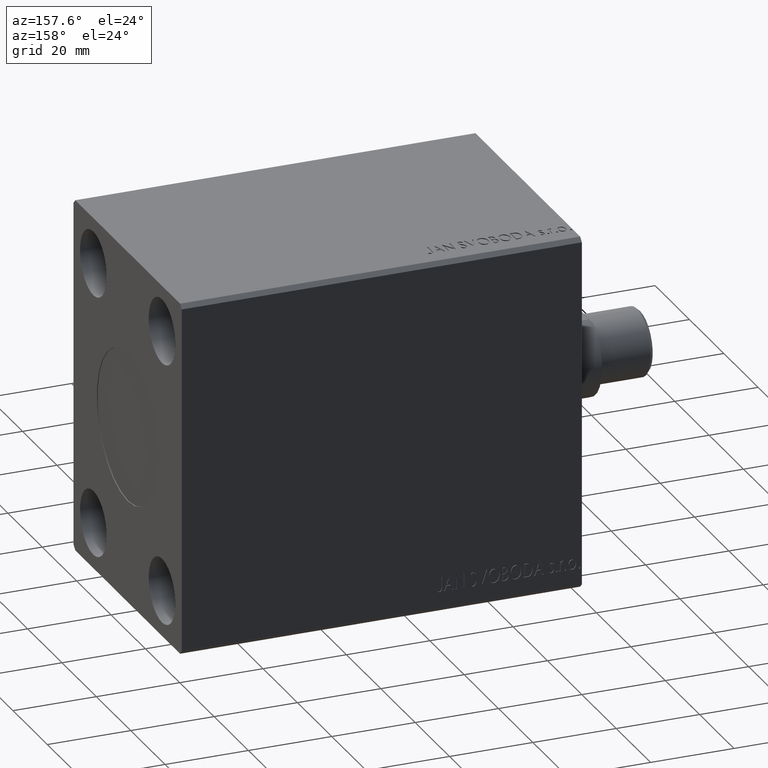
[diagram: clean part render]
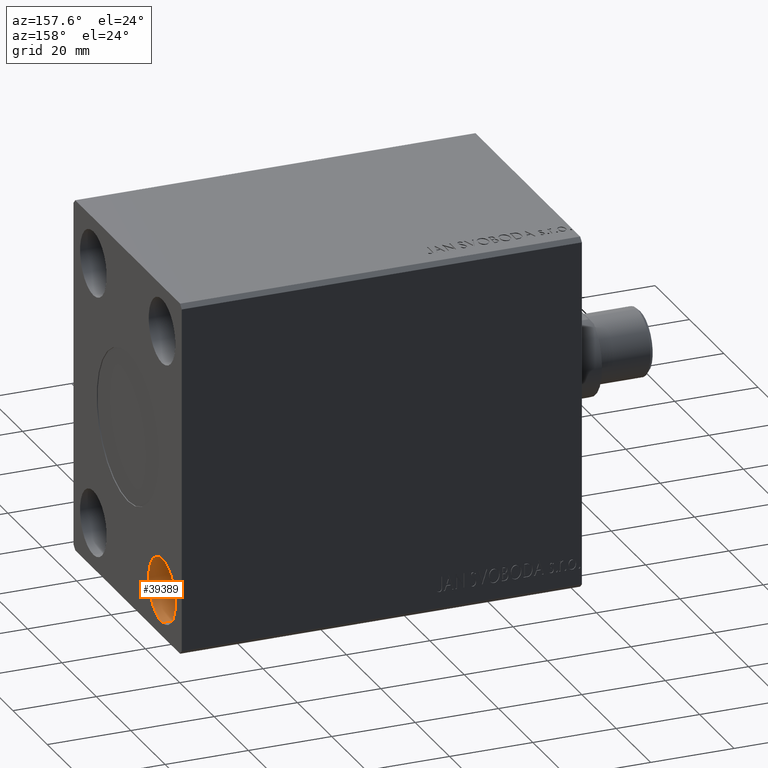
[diagram: same view with one face highlighted and labeled with its STEP entity id]
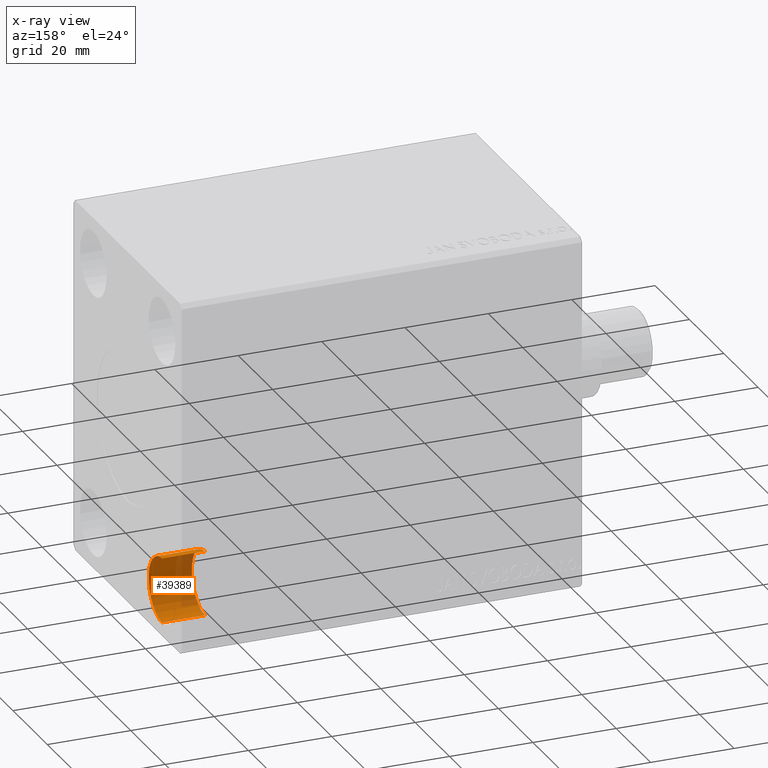
[diagram: x-ray of the same camera — body ghosted, the highlighted face saturated]
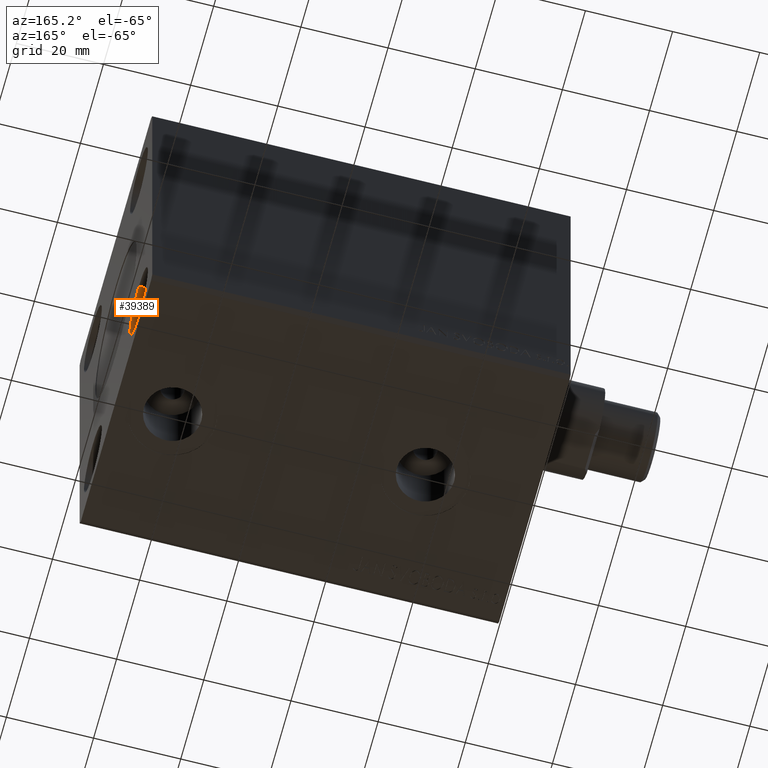
[diagram: same view with one face highlighted and labeled with its STEP entity id]
A machine part, auxiliary view. The second image highlights one B-rep face of the part: STEP entity #39389.
The next image is the same camera in x-ray: the body ghosted, the highlighted face saturated — about 29% of this face is hidden behind the body in this view.
A second angle (auxiliary view) of the same face is appended — the face is thin or edge-on in the first view.
In plain terms, the highlighted cylindrical surface (edge-blend (fillet) strip) has radius 7.75 mm, axis along (1, 0, 0).
Its self-contained STEP definition (entity closure, byte-faithful):
#1843 = CARTESIAN_POINT ( 'NONE',  ( 85.67000000000000171, 20.00000000000000355, -23.74999999999998579 ) ) ;
#1886 = EDGE_LOOP ( 'NONE', ( #40773, #36131, #42755, #32365 ) ) ;
#2999 = CIRCLE ( 'NONE', #38957, 7.750000000000000000 ) ;
#7034 = CARTESIAN_POINT ( 'NONE',  ( 85.67000000000000171, 20.00000000000000355, -23.74999999999998579 ) ) ;
#7124 = CARTESIAN_POINT ( 'NONE',  ( 96.00000000000000000, 20.00000000000000355, -31.49999999999998579 ) ) ;
#8692 = VERTEX_POINT ( 'NONE', #29794 ) ;
#9666 = LINE ( 'NONE', #23831, #43443 ) ;
#10286 = DIRECTION ( 'NONE',  ( -1.000000000000000000, -0.000000000000000000, -0.000000000000000000 ) ) ;
#10413 = LINE ( 'NONE', #7034, #24681 ) ;
#11938 = CARTESIAN_POINT ( 'NONE',  ( 85.67000000000000171, 20.00000000000000355, -31.49999999999998579 ) ) ;
#12593 = VERTEX_POINT ( 'NONE', #38877 ) ;
#13220 = VERTEX_POINT ( 'NONE', #14208 ) ;
#14208 = CARTESIAN_POINT ( 'NONE',  ( 85.67000000000000171, 20.00000000000000355, -39.24999999999998579 ) ) ;
#15321 = CYLINDRICAL_SURFACE ( 'NONE', #31354, 7.750000000000000000 ) ;
#16128 = DIRECTION ( 'NONE',  ( 0.000000000000000000, 0.000000000000000000, 1.000000000000000000 ) ) ;
#17021 = DIRECTION ( 'NONE',  ( 0.000000000000000000, 0.000000000000000000, 1.000000000000000000 ) ) ;
#17156 = DIRECTION ( 'NONE',  ( 1.000000000000000000, -0.000000000000000000, -0.000000000000000000 ) ) ;
#20393 = DIRECTION ( 'NONE',  ( -1.000000000000000000, -0.000000000000000000, -0.000000000000000000 ) ) ;
#20789 = EDGE_CURVE ( 'NONE', #8692, #12593, #2999, .T. ) ;
#23441 = EDGE_CURVE ( 'NONE', #13220, #36233, #39018, .T. ) ;
#23703 = EDGE_CURVE ( 'NONE', #36233, #12593, #10413, .T. ) ;
#23771 = CARTESIAN_POINT ( 'NONE',  ( 85.67000000000000171, 20.00000000000000355, -31.49999999999998579 ) ) ;
#23831 = CARTESIAN_POINT ( 'NONE',  ( 85.67000000000000171, 20.00000000000000355, -39.24999999999998579 ) ) ;
#24681 = VECTOR ( 'NONE', #17156, 1000.000000000000000 ) ;
#25343 = AXIS2_PLACEMENT_3D ( 'NONE', #23771, #20393, #16128 ) ;
#29058 = DIRECTION ( 'NONE',  ( 1.000000000000000000, -0.000000000000000000, -0.000000000000000000 ) ) ;
#29794 = CARTESIAN_POINT ( 'NONE',  ( 96.00000000000000000, 20.00000000000000355, -39.24999999999998579 ) ) ;
#31354 = AXIS2_PLACEMENT_3D ( 'NONE', #11938, #29058, #36471 ) ;
#32131 = EDGE_CURVE ( 'NONE', #13220, #8692, #9666, .T. ) ;
#32365 = ORIENTED_EDGE ( 'NONE', *, *, #32131, .F. ) ;
#36131 = ORIENTED_EDGE ( 'NONE', *, *, #23703, .T. ) ;
#36233 = VERTEX_POINT ( 'NONE', #1843 ) ;
#36471 = DIRECTION ( 'NONE',  ( 0.000000000000000000, 0.000000000000000000, -1.000000000000000000 ) ) ;
#38877 = CARTESIAN_POINT ( 'NONE',  ( 96.00000000000000000, 20.00000000000000355, -23.74999999999998579 ) ) ;
#38957 = AXIS2_PLACEMENT_3D ( 'NONE', #7124, #10286, #17021 ) ;
#39018 = CIRCLE ( 'NONE', #25343, 7.750000000000000000 ) ;
#39389 = ADVANCED_FACE ( 'NONE', ( #39618 ), #15321, .F. ) ;
#39618 = FACE_OUTER_BOUND ( 'NONE', #1886, .T. ) ;
#40773 = ORIENTED_EDGE ( 'NONE', *, *, #23441, .T. ) ;
#42755 = ORIENTED_EDGE ( 'NONE', *, *, #20789, .F. ) ;
#43443 = VECTOR ( 'NONE', #43865, 1000.000000000000000 ) ;
#43865 = DIRECTION ( 'NONE',  ( 1.000000000000000000, -0.000000000000000000, -0.000000000000000000 ) ) ;